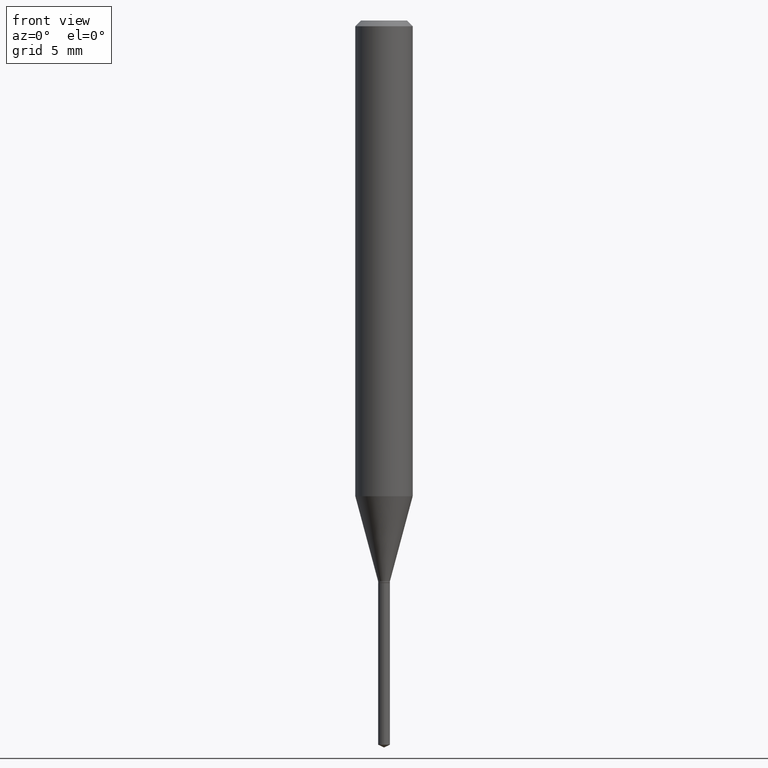
[diagram: clean part render]
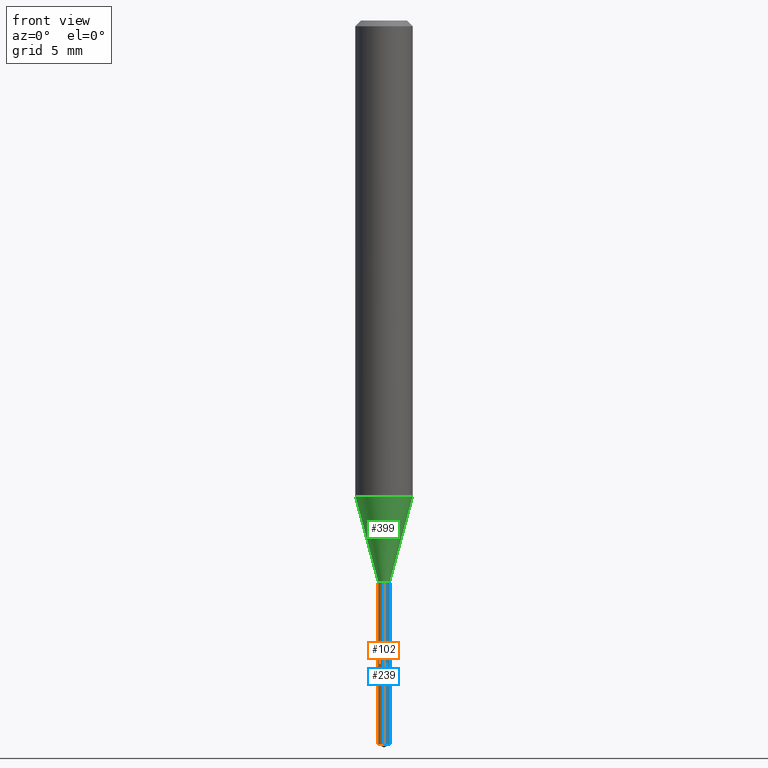
[diagram: same view with three faces highlighted in distinct colors, each labeled with its STEP entity id]
A machine part, front view with three faces highlighted in distinct colors.
Their STEP definitions:

[orange] entity #102 — the highlighted cylindrical surface (edge-blend (fillet) strip) has radius 0.3099 mm, axis along (-0, 0, 1).
#4 = LINE ( 'NONE', #351, #353 ) ;
#6 = VERTEX_POINT ( 'NONE', #381 ) ;
#19 = CIRCLE ( 'NONE', #53, 0.01220000000000000077 ) ;
#22 = EDGE_LOOP ( 'NONE', ( #101, #25, #49, #222 ) ) ;
#25 = ORIENTED_EDGE ( 'NONE', *, *, #220, .T. ) ;
#32 = EDGE_CURVE ( 'NONE', #404, #6, #4, .T. ) ;
#36 = VERTEX_POINT ( 'NONE', #74 ) ;
#42 = FACE_OUTER_BOUND ( 'NONE', #22, .T. ) ;
#49 = ORIENTED_EDGE ( 'NONE', *, *, #200, .T. ) ;
#53 = AXIS2_PLACEMENT_3D ( 'NONE', #358, #321, #128 ) ;
#74 = CARTESIAN_POINT ( 'NONE',  ( -8.519214466773599548E-17, -0.01220000000000520668, -1.490411046570508935 ) ) ;
#93 = CIRCLE ( 'NONE', #203, 0.01220000000000000077 ) ;
#101 = ORIENTED_EDGE ( 'NONE', *, *, #32, .F. ) ;
#102 = ADVANCED_FACE ( 'NONE', ( #42 ), #223, .T. ) ;
#128 = DIRECTION ( 'NONE',  ( -6.982962677686266711E-15, -1.000000000000000000, 0.000000000000000000 ) ) ;
#158 = CARTESIAN_POINT ( 'NONE',  ( 2.830630143159295633E-29, -4.041389649710940900E-15, -1.157499999999999973 ) ) ;
#191 = EDGE_CURVE ( 'NONE', #6, #443, #93, .T. ) ;
#194 = DIRECTION ( 'NONE',  ( -6.982962677686266711E-15, -1.000000000000000000, 0.000000000000000000 ) ) ;
#200 = EDGE_CURVE ( 'NONE', #36, #443, #285, .T. ) ;
#203 = AXIS2_PLACEMENT_3D ( 'NONE', #362, #438, #474 ) ;
#220 = EDGE_CURVE ( 'NONE', #404, #36, #19, .T. ) ;
#222 = ORIENTED_EDGE ( 'NONE', *, *, #191, .F. ) ;
#223 = CYLINDRICAL_SURFACE ( 'NONE', #348, 0.01220000000000000077 ) ;
#229 = DIRECTION ( 'NONE',  ( -2.443412120811339220E-29, 3.494426629357685076E-15, 1.000000000000000000 ) ) ;
#230 = DIRECTION ( 'NONE',  ( -2.443412120811338940E-29, 3.494426629357684682E-15, 1.000000000000000000 ) ) ;
#285 = LINE ( 'NONE', #356, #466 ) ;
#298 = CARTESIAN_POINT ( 'NONE',  ( -8.519214466774414293E-17, -0.01220000000000404268, -1.157499999999999973 ) ) ;
#321 = DIRECTION ( 'NONE',  ( -2.443412120811339220E-29, 3.494426629357685076E-15, 1.000000000000000000 ) ) ;
#348 = AXIS2_PLACEMENT_3D ( 'NONE', #158, #229, #194 ) ;
#351 = CARTESIAN_POINT ( 'NONE',  ( 8.668621376276052856E-17, 0.01219999999999595887, -1.157499999999999973 ) ) ;
#353 = VECTOR ( 'NONE', #230, 39.37007874015748143 ) ;
#356 = CARTESIAN_POINT ( 'NONE',  ( -8.519214466774414293E-17, -0.01220000000000404268, -1.157499999999999973 ) ) ;
#358 = CARTESIAN_POINT ( 'NONE',  ( 3.644069029501665406E-29, -5.204722876054263859E-15, -1.490411046570508935 ) ) ;
#362 = CARTESIAN_POINT ( 'NONE',  ( 2.830630143159295633E-29, -4.041389649710940900E-15, -1.157499999999999973 ) ) ;
#369 = CARTESIAN_POINT ( 'NONE',  ( 8.668621376276865137E-17, 0.01219999999999479313, -1.490411046570508935 ) ) ;
#381 = CARTESIAN_POINT ( 'NONE',  ( 8.668621376276871300E-17, 0.01219999999999595887, -1.157499999999999973 ) ) ;
#404 = VERTEX_POINT ( 'NONE', #369 ) ;
#438 = DIRECTION ( 'NONE',  ( -2.443412120811339220E-29, 3.494426629357685076E-15, 1.000000000000000000 ) ) ;
#443 = VERTEX_POINT ( 'NONE', #298 ) ;
#466 = VECTOR ( 'NONE', #468, 39.37007874015748143 ) ;
#468 = DIRECTION ( 'NONE',  ( -2.443412120811338940E-29, 3.494426629357684682E-15, 1.000000000000000000 ) ) ;
#474 = DIRECTION ( 'NONE',  ( -6.982962677686266711E-15, -1.000000000000000000, 0.000000000000000000 ) ) ;

[blue] entity #239 — the highlighted cylindrical surface (edge-blend (fillet) strip) has radius 0.3099 mm, axis along (-0, 0, 1).
#4 = LINE ( 'NONE', #351, #353 ) ;
#6 = VERTEX_POINT ( 'NONE', #381 ) ;
#32 = EDGE_CURVE ( 'NONE', #404, #6, #4, .T. ) ;
#36 = VERTEX_POINT ( 'NONE', #74 ) ;
#74 = CARTESIAN_POINT ( 'NONE',  ( -8.519214466773599548E-17, -0.01220000000000520668, -1.490411046570508935 ) ) ;
#79 = CIRCLE ( 'NONE', #454, 0.01220000000000000077 ) ;
#95 = DIRECTION ( 'NONE',  ( -2.443412120811339220E-29, 3.494426629357685076E-15, 1.000000000000000000 ) ) ;
#106 = EDGE_LOOP ( 'NONE', ( #251, #134, #256, #281 ) ) ;
#122 = CARTESIAN_POINT ( 'NONE',  ( 2.830630143159295633E-29, -4.041389649710940900E-15, -1.157499999999999973 ) ) ;
#134 = ORIENTED_EDGE ( 'NONE', *, *, #32, .T. ) ;
#185 = CIRCLE ( 'NONE', #249, 0.01220000000000000077 ) ;
#200 = EDGE_CURVE ( 'NONE', #36, #443, #285, .T. ) ;
#207 = DIRECTION ( 'NONE',  ( -6.982962677686266711E-15, -1.000000000000000000, 0.000000000000000000 ) ) ;
#213 = DIRECTION ( 'NONE',  ( -2.443412120811339220E-29, 3.494426629357685076E-15, 1.000000000000000000 ) ) ;
#230 = DIRECTION ( 'NONE',  ( -2.443412120811338940E-29, 3.494426629357684682E-15, 1.000000000000000000 ) ) ;
#239 = ADVANCED_FACE ( 'NONE', ( #430 ), #243, .T. ) ;
#243 = CYLINDRICAL_SURFACE ( 'NONE', #273, 0.01220000000000000077 ) ;
#249 = AXIS2_PLACEMENT_3D ( 'NONE', #122, #274, #282 ) ;
#250 = DIRECTION ( 'NONE',  ( -6.982962677686266711E-15, -1.000000000000000000, 0.000000000000000000 ) ) ;
#251 = ORIENTED_EDGE ( 'NONE', *, *, #458, .T. ) ;
#256 = ORIENTED_EDGE ( 'NONE', *, *, #311, .F. ) ;
#273 = AXIS2_PLACEMENT_3D ( 'NONE', #352, #95, #207 ) ;
#274 = DIRECTION ( 'NONE',  ( -2.443412120811339220E-29, 3.494426629357685076E-15, 1.000000000000000000 ) ) ;
#281 = ORIENTED_EDGE ( 'NONE', *, *, #200, .F. ) ;
#282 = DIRECTION ( 'NONE',  ( -6.982962677686266711E-15, -1.000000000000000000, 0.000000000000000000 ) ) ;
#285 = LINE ( 'NONE', #356, #466 ) ;
#298 = CARTESIAN_POINT ( 'NONE',  ( -8.519214466774414293E-17, -0.01220000000000404268, -1.157499999999999973 ) ) ;
#311 = EDGE_CURVE ( 'NONE', #443, #6, #185, .T. ) ;
#351 = CARTESIAN_POINT ( 'NONE',  ( 8.668621376276052856E-17, 0.01219999999999595887, -1.157499999999999973 ) ) ;
#352 = CARTESIAN_POINT ( 'NONE',  ( 2.830630143159295633E-29, -4.041389649710940900E-15, -1.157499999999999973 ) ) ;
#353 = VECTOR ( 'NONE', #230, 39.37007874015748143 ) ;
#356 = CARTESIAN_POINT ( 'NONE',  ( -8.519214466774414293E-17, -0.01220000000000404268, -1.157499999999999973 ) ) ;
#369 = CARTESIAN_POINT ( 'NONE',  ( 8.668621376276865137E-17, 0.01219999999999479313, -1.490411046570508935 ) ) ;
#381 = CARTESIAN_POINT ( 'NONE',  ( 8.668621376276871300E-17, 0.01219999999999595887, -1.157499999999999973 ) ) ;
#404 = VERTEX_POINT ( 'NONE', #369 ) ;
#430 = FACE_OUTER_BOUND ( 'NONE', #106, .T. ) ;
#443 = VERTEX_POINT ( 'NONE', #298 ) ;
#454 = AXIS2_PLACEMENT_3D ( 'NONE', #475, #213, #250 ) ;
#458 = EDGE_CURVE ( 'NONE', #36, #404, #79, .T. ) ;
#466 = VECTOR ( 'NONE', #468, 39.37007874015748143 ) ;
#468 = DIRECTION ( 'NONE',  ( -2.443412120811338940E-29, 3.494426629357684682E-15, 1.000000000000000000 ) ) ;
#475 = CARTESIAN_POINT ( 'NONE',  ( 3.644069029501665406E-29, -5.204722876054263859E-15, -1.490411046570508935 ) ) ;

[green] entity #399 — the highlighted conical surface has half-angle 15 deg.
#20 = CARTESIAN_POINT ( 'NONE',  ( -0.01220000000000000077, -3.941784954994488843E-15, -1.153799999999999937 ) ) ;
#38 = LINE ( 'NONE', #310, #371 ) ;
#39 = AXIS2_PLACEMENT_3D ( 'NONE', #131, #434, #400 ) ;
#52 = CARTESIAN_POINT ( 'NONE',  ( 2.821581908576410135E-29, -4.028471168757220985E-15, -1.153799999999999937 ) ) ;
#60 = CIRCLE ( 'NONE', #39, 0.05905000000000013016 ) ;
#83 = DIRECTION ( 'NONE',  ( 0.2588190451025211836, 1.565188264969622559E-15, 0.9659258262890679791 ) ) ;
#94 = LINE ( 'NONE', #20, #231 ) ;
#104 = ORIENTED_EDGE ( 'NONE', *, *, #341, .T. ) ;
#127 = DIRECTION ( 'NONE',  ( -2.445468806185136597E-29, 3.491481338843145583E-15, 1.000000000000000000 ) ) ;
#130 = EDGE_CURVE ( 'NONE', #397, #375, #38, .T. ) ;
#131 = CARTESIAN_POINT ( 'NONE',  ( 2.394000050499997452E-29, -3.417997596358418837E-15, -0.9789534196653978393 ) ) ;
#136 = AXIS2_PLACEMENT_3D ( 'NONE', #52, #127, #280 ) ;
#172 = VERTEX_POINT ( 'NONE', #360 ) ;
#181 = EDGE_LOOP ( 'NONE', ( #469, #104, #368, #299 ) ) ;
#196 = AXIS2_PLACEMENT_3D ( 'NONE', #254, #447, #296 ) ;
#205 = EDGE_CURVE ( 'NONE', #370, #172, #94, .T. ) ;
#212 = EDGE_CURVE ( 'NONE', #172, #375, #60, .T. ) ;
#231 = VECTOR ( 'NONE', #322, 39.37007874015748854 ) ;
#254 = CARTESIAN_POINT ( 'NONE',  ( 2.821581908576410135E-29, -4.028471168757220985E-15, -1.153799999999999937 ) ) ;
#280 = DIRECTION ( 'NONE',  ( 1.000000000000000000, -6.982962677686284854E-15, 0.000000000000000000 ) ) ;
#293 = CARTESIAN_POINT ( 'NONE',  ( -0.01220000000000000077, -3.947371325136637655E-15, -1.153799999999999937 ) ) ;
#296 = DIRECTION ( 'NONE',  ( 1.000000000000000000, -6.982962677686284854E-15, 0.000000000000000000 ) ) ;
#299 = ORIENTED_EDGE ( 'NONE', *, *, #212, .F. ) ;
#310 = CARTESIAN_POINT ( 'NONE',  ( 0.01220000000000000077, -4.113663313424993515E-15, -1.153799999999999937 ) ) ;
#322 = DIRECTION ( 'NONE',  ( -0.2588190451025211836, 5.211531920934547886E-15, 0.9659258262890679791 ) ) ;
#332 = CARTESIAN_POINT ( 'NONE',  ( 0.05905000000000013016, -3.830341542475794546E-15, -0.9789534196653978393 ) ) ;
#341 = EDGE_CURVE ( 'NONE', #370, #397, #461, .T. ) ;
#360 = CARTESIAN_POINT ( 'NONE',  ( -0.05905000000000013016, -2.998422110892078950E-15, -0.9789534196653978393 ) ) ;
#365 = FACE_OUTER_BOUND ( 'NONE', #181, .T. ) ;
#368 = ORIENTED_EDGE ( 'NONE', *, *, #130, .T. ) ;
#370 = VERTEX_POINT ( 'NONE', #293 ) ;
#371 = VECTOR ( 'NONE', #83, 39.37007874015748854 ) ;
#375 = VERTEX_POINT ( 'NONE', #332 ) ;
#397 = VERTEX_POINT ( 'NONE', #442 ) ;
#399 = ADVANCED_FACE ( 'NONE', ( #365 ), #412, .T. ) ;
#400 = DIRECTION ( 'NONE',  ( 1.000000000000000000, -6.982962677686265133E-15, 0.000000000000000000 ) ) ;
#412 = CONICAL_SURFACE ( 'NONE', #196, 0.01220000000000000077, 0.2617993877991499074 ) ;
#434 = DIRECTION ( 'NONE',  ( -2.445468806185136597E-29, 3.491481338843145583E-15, 1.000000000000000000 ) ) ;
#442 = CARTESIAN_POINT ( 'NONE',  ( 0.01220000000000000077, -4.113663313424993515E-15, -1.153799999999999937 ) ) ;
#447 = DIRECTION ( 'NONE',  ( -2.445468806185136597E-29, 3.491481338843145583E-15, 1.000000000000000000 ) ) ;
#461 = CIRCLE ( 'NONE', #136, 0.01220000000000000077 ) ;
#469 = ORIENTED_EDGE ( 'NONE', *, *, #205, .F. ) ;